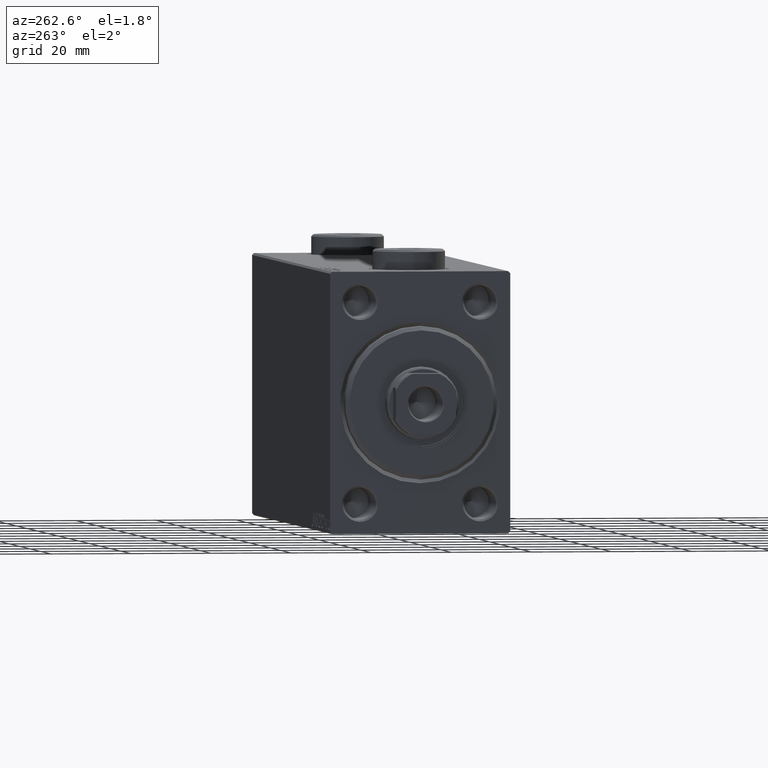
[diagram: clean part render]
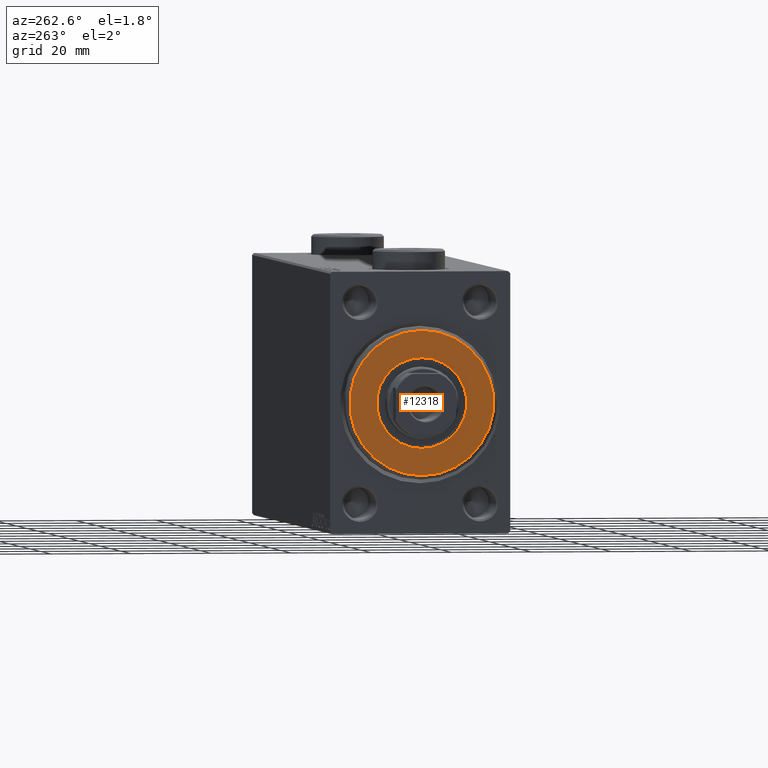
[diagram: same view with one face highlighted and labeled with its STEP entity id]
A machine part, auxiliary view. The second image highlights one B-rep face of the part: STEP entity #12318.
In plain terms, the highlighted planar face has unit normal (-1, 0, 0).
Its self-contained STEP definition (entity closure, byte-faithful):
#794 = PLANE ( 'NONE',  #39871 ) ;
#960 = EDGE_CURVE ( 'NONE', #34272, #37705, #13842, .T. ) ;
#1995 = CARTESIAN_POINT ( 'NONE',  ( 3.000000000000000000, 1.377727649040772586E-15, 11.25000000000000178 ) ) ;
#2571 = CARTESIAN_POINT ( 'NONE',  ( 3.000000000000000000, 0.000000000000000000, 0.000000000000000000 ) ) ;
#4467 = FACE_OUTER_BOUND ( 'NONE', #4694, .T. ) ;
#4542 = CARTESIAN_POINT ( 'NONE',  ( 3.000000000000000000, 0.000000000000000000, -11.25000000000000178 ) ) ;
#4694 = EDGE_LOOP ( 'NONE', ( #15008, #9862 ) ) ;
#6617 = EDGE_LOOP ( 'NONE', ( #42060, #9639 ) ) ;
#7768 = DIRECTION ( 'NONE',  ( 1.000000000000000000, 0.000000000000000000, 0.000000000000000000 ) ) ;
#9050 = DIRECTION ( 'NONE',  ( 0.000000000000000000, 0.000000000000000000, -1.000000000000000000 ) ) ;
#9639 = ORIENTED_EDGE ( 'NONE', *, *, #960, .F. ) ;
#9862 = ORIENTED_EDGE ( 'NONE', *, *, #24076, .T. ) ;
#11160 = DIRECTION ( 'NONE',  ( 0.000000000000000000, 0.000000000000000000, -1.000000000000000000 ) ) ;
#11267 = EDGE_CURVE ( 'NONE', #37705, #34272, #21419, .T. ) ;
#12318 = ADVANCED_FACE ( 'NONE', ( #4467, #28913 ), #794, .T. ) ;
#12555 = AXIS2_PLACEMENT_3D ( 'NONE', #13984, #23919, #34753 ) ;
#12954 = CARTESIAN_POINT ( 'NONE',  ( 3.000000000000000000, 0.000000000000000000, 17.99999999999999645 ) ) ;
#13842 = CIRCLE ( 'NONE', #15965, 11.25000000000000178 ) ;
#13984 = CARTESIAN_POINT ( 'NONE',  ( 3.000000000000000000, 0.000000000000000000, 0.000000000000000000 ) ) ;
#15008 = ORIENTED_EDGE ( 'NONE', *, *, #35587, .T. ) ;
#15790 = VERTEX_POINT ( 'NONE', #29601 ) ;
#15965 = AXIS2_PLACEMENT_3D ( 'NONE', #30013, #26558, #9050 ) ;
#18521 = CARTESIAN_POINT ( 'NONE',  ( 3.000000000000000000, 0.000000000000000000, 0.000000000000000000 ) ) ;
#18572 = DIRECTION ( 'NONE',  ( 0.000000000000000000, 0.000000000000000000, -1.000000000000000000 ) ) ;
#21419 = CIRCLE ( 'NONE', #22149, 11.25000000000000178 ) ;
#22149 = AXIS2_PLACEMENT_3D ( 'NONE', #42804, #7768, #18572 ) ;
#23919 = DIRECTION ( 'NONE',  ( 1.000000000000000000, -0.000000000000000000, 0.000000000000000000 ) ) ;
#24076 = EDGE_CURVE ( 'NONE', #15790, #28609, #36086, .T. ) ;
#26558 = DIRECTION ( 'NONE',  ( 1.000000000000000000, 0.000000000000000000, 0.000000000000000000 ) ) ;
#28183 = AXIS2_PLACEMENT_3D ( 'NONE', #2571, #33919, #30913 ) ;
#28609 = VERTEX_POINT ( 'NONE', #12954 ) ;
#28913 = FACE_BOUND ( 'NONE', #6617, .T. ) ;
#29601 = CARTESIAN_POINT ( 'NONE',  ( 3.000000000000000000, 2.265596578422603002E-15, -17.99999999999999645 ) ) ;
#30013 = CARTESIAN_POINT ( 'NONE',  ( 3.000000000000000000, 0.000000000000000000, 0.000000000000000000 ) ) ;
#30913 = DIRECTION ( 'NONE',  ( 0.000000000000000000, 0.000000000000000000, -1.000000000000000000 ) ) ;
#33919 = DIRECTION ( 'NONE',  ( 1.000000000000000000, -0.000000000000000000, 0.000000000000000000 ) ) ;
#34272 = VERTEX_POINT ( 'NONE', #1995 ) ;
#34753 = DIRECTION ( 'NONE',  ( 0.000000000000000000, 0.000000000000000000, -1.000000000000000000 ) ) ;
#35139 = DIRECTION ( 'NONE',  ( 1.000000000000000000, -0.000000000000000000, 0.000000000000000000 ) ) ;
#35587 = EDGE_CURVE ( 'NONE', #28609, #15790, #39986, .T. ) ;
#36086 = CIRCLE ( 'NONE', #12555, 17.99999999999999645 ) ;
#37705 = VERTEX_POINT ( 'NONE', #4542 ) ;
#39871 = AXIS2_PLACEMENT_3D ( 'NONE', #18521, #35139, #11160 ) ;
#39986 = CIRCLE ( 'NONE', #28183, 17.99999999999999645 ) ;
#42060 = ORIENTED_EDGE ( 'NONE', *, *, #11267, .F. ) ;
#42804 = CARTESIAN_POINT ( 'NONE',  ( 3.000000000000000000, 0.000000000000000000, 0.000000000000000000 ) ) ;